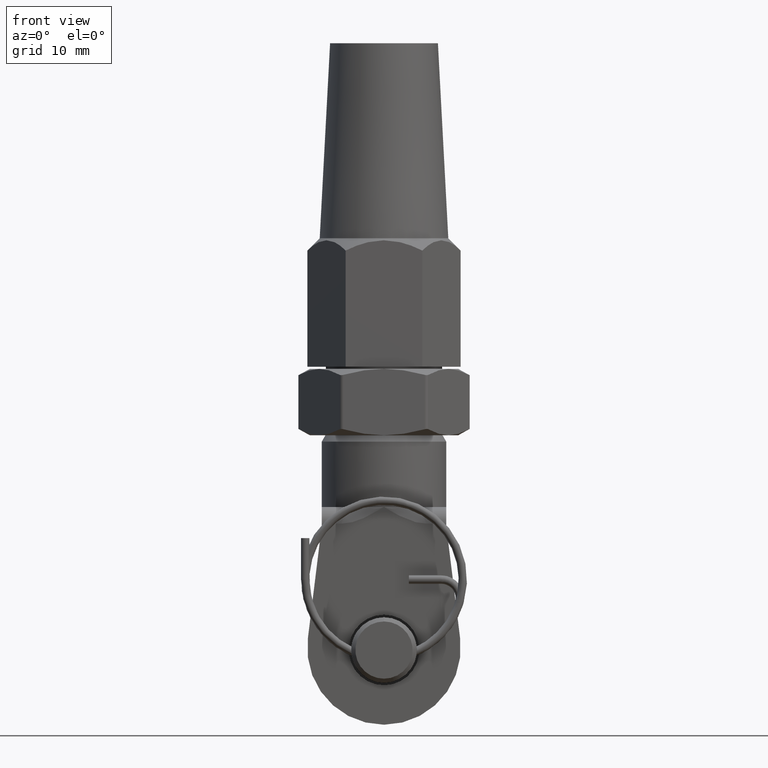
[diagram: clean part render]
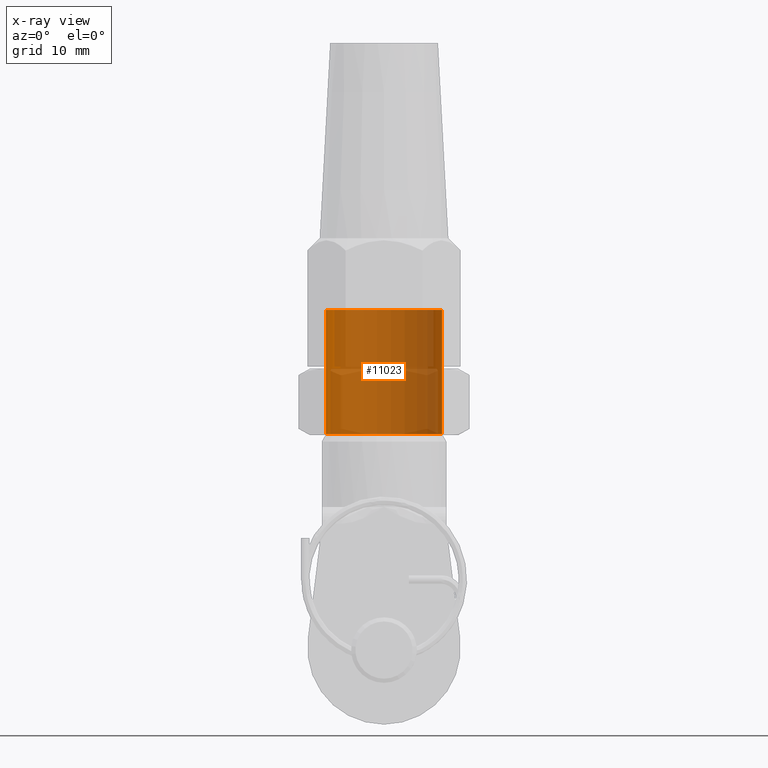
[diagram: x-ray — body ghosted, one internal face saturated and labeled with its STEP entity id]
A machine part, front view, then the same camera in x-ray: the body is ghosted and one INTERNAL B-rep face — a face not visible from any outside direction — is saturated and labeled: STEP entity #11023.
In plain terms, the highlighted cylindrical surface (partial cylindrical patch) has radius 7 mm, axis along (-0, -0, -1).
Its self-contained STEP definition (entity closure, byte-faithful):
#443 = CARTESIAN_POINT ( 'NONE',  ( 7.000000000000000000, 8.572527594031473200E-016, 16.00000000000000400 ) ) ;
#1465 = CARTESIAN_POINT ( 'NONE',  ( 7.000000000000000000, 8.572527594031473200E-016, 17.00000000000000000 ) ) ;
#1694 = CARTESIAN_POINT ( 'NONE',  ( 0.0000000000000000000, 0.0000000000000000000, 17.00000000000000000 ) ) ;
#1982 = VERTEX_POINT ( 'NONE', #10741 ) ;
#2282 = VECTOR ( 'NONE', #8651, 1000.000000000000000 ) ;
#3991 = LINE ( 'NONE', #12860, #23734 ) ;
#5030 = CARTESIAN_POINT ( 'NONE',  ( 0.0000000000000000000, 0.0000000000000000000, 1.000000000000004400 ) ) ;
#5944 = EDGE_CURVE ( 'NONE', #1982, #22269, #8557, .T. ) ;
#6840 = CYLINDRICAL_SURFACE ( 'NONE', #8552, 7.000000000000000000 ) ;
#6894 = DIRECTION ( 'NONE',  ( 0.0000000000000000000, 0.0000000000000000000, 1.000000000000000000 ) ) ;
#6999 = ORIENTED_EDGE ( 'NONE', *, *, #5944, .T. ) ;
#8083 = CARTESIAN_POINT ( 'NONE',  ( -7.000000000000000000, 0.0000000000000000000, 1.000000000000004400 ) ) ;
#8431 = DIRECTION ( 'NONE',  ( 1.000000000000000000, 0.0000000000000000000, 0.0000000000000000000 ) ) ;
#8552 = AXIS2_PLACEMENT_3D ( 'NONE', #1694, #11233, #9045 ) ;
#8557 = CIRCLE ( 'NONE', #9602, 7.000000000000000000 ) ;
#8651 = DIRECTION ( 'NONE',  ( -0.0000000000000000000, -0.0000000000000000000, -1.000000000000000000 ) ) ;
#8762 = EDGE_CURVE ( 'NONE', #22269, #9985, #10106, .T. ) ;
#9045 = DIRECTION ( 'NONE',  ( -1.000000000000000000, 0.0000000000000000000, 0.0000000000000000000 ) ) ;
#9167 = FACE_OUTER_BOUND ( 'NONE', #18931, .T. ) ;
#9602 = AXIS2_PLACEMENT_3D ( 'NONE', #10374, #19402, #8431 ) ;
#9670 = EDGE_CURVE ( 'NONE', #1982, #16170, #3991, .T. ) ;
#9985 = VERTEX_POINT ( 'NONE', #14164 ) ;
#10106 = LINE ( 'NONE', #1465, #2282 ) ;
#10374 = CARTESIAN_POINT ( 'NONE',  ( 0.0000000000000000000, 0.0000000000000000000, 16.00000000000000400 ) ) ;
#10741 = CARTESIAN_POINT ( 'NONE',  ( -7.000000000000000000, 0.0000000000000000000, 16.00000000000000400 ) ) ;
#11023 = ADVANCED_FACE ( 'NONE', ( #9167 ), #6840, .T. ) ;
#11233 = DIRECTION ( 'NONE',  ( -0.0000000000000000000, -0.0000000000000000000, -1.000000000000000000 ) ) ;
#12860 = CARTESIAN_POINT ( 'NONE',  ( -7.000000000000000000, 0.0000000000000000000, 17.00000000000000000 ) ) ;
#14164 = CARTESIAN_POINT ( 'NONE',  ( 7.000000000000000000, 8.572527594031473200E-016, 1.000000000000004400 ) ) ;
#14726 = DIRECTION ( 'NONE',  ( -0.0000000000000000000, -0.0000000000000000000, -1.000000000000000000 ) ) ;
#15937 = ORIENTED_EDGE ( 'NONE', *, *, #8762, .T. ) ;
#16170 = VERTEX_POINT ( 'NONE', #8083 ) ;
#18131 = EDGE_CURVE ( 'NONE', #9985, #16170, #21826, .T. ) ;
#18931 = EDGE_LOOP ( 'NONE', ( #6999, #15937, #22799, #20481 ) ) ;
#19402 = DIRECTION ( 'NONE',  ( 0.0000000000000000000, 0.0000000000000000000, -1.000000000000000000 ) ) ;
#20481 = ORIENTED_EDGE ( 'NONE', *, *, #9670, .F. ) ;
#21826 = CIRCLE ( 'NONE', #22803, 7.000000000000000000 ) ;
#22269 = VERTEX_POINT ( 'NONE', #443 ) ;
#22799 = ORIENTED_EDGE ( 'NONE', *, *, #18131, .T. ) ;
#22803 = AXIS2_PLACEMENT_3D ( 'NONE', #5030, #6894, #23622 ) ;
#23622 = DIRECTION ( 'NONE',  ( -1.000000000000000000, 0.0000000000000000000, 0.0000000000000000000 ) ) ;
#23734 = VECTOR ( 'NONE', #14726, 1000.000000000000000 ) ;